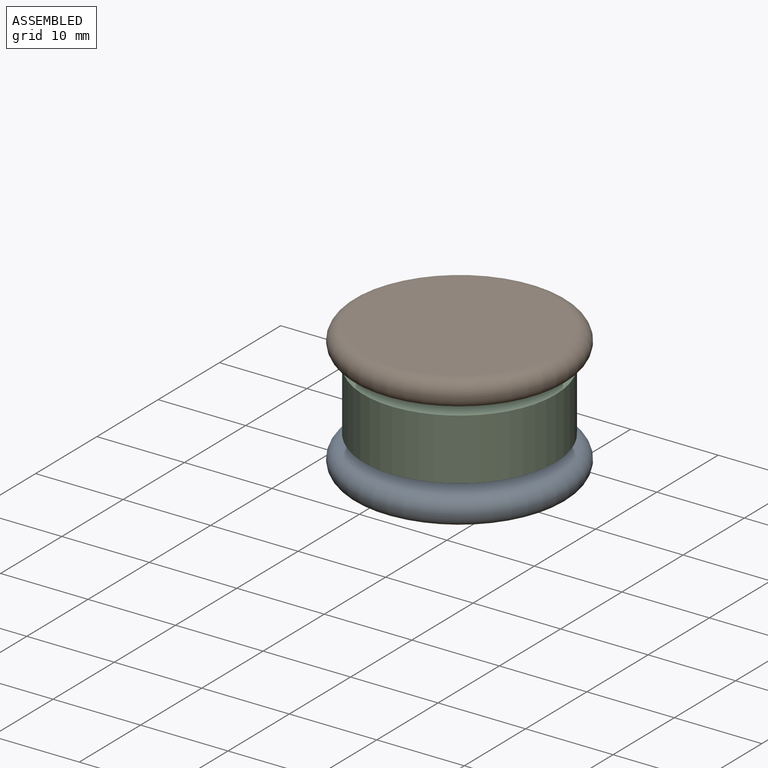
[diagram: assembled view]
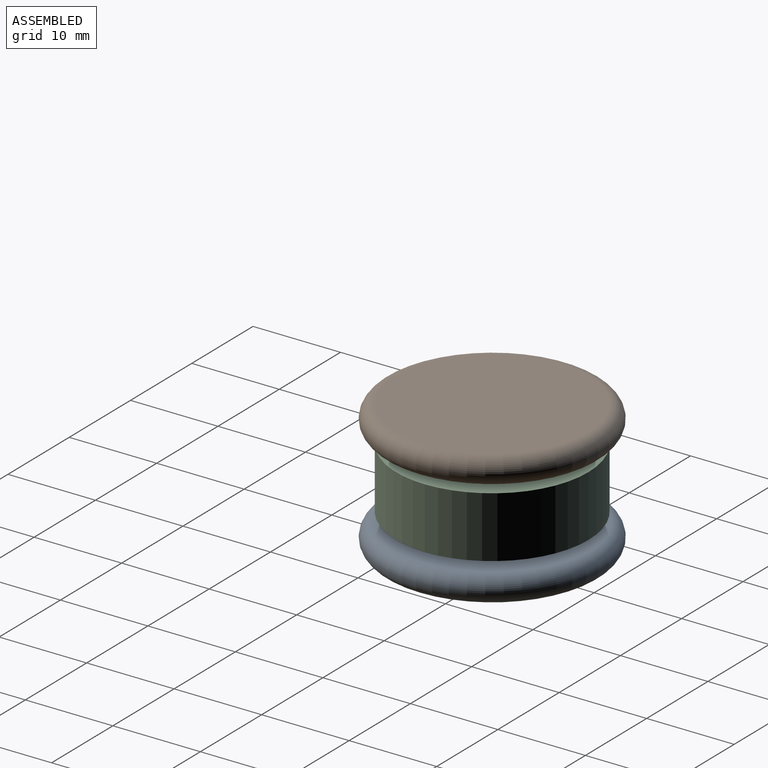
[diagram: assembled view, second angle]
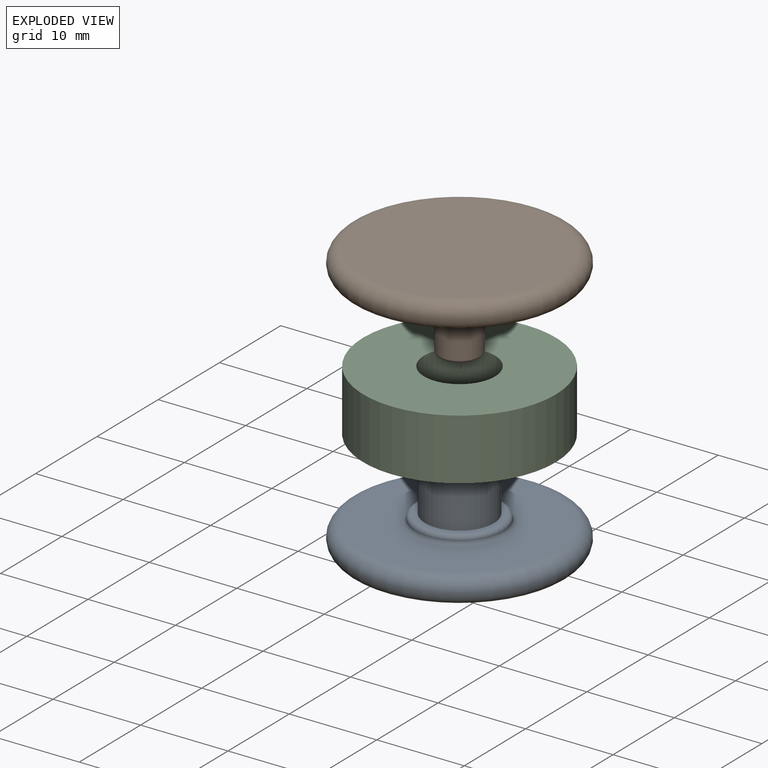
[diagram: exploded view]
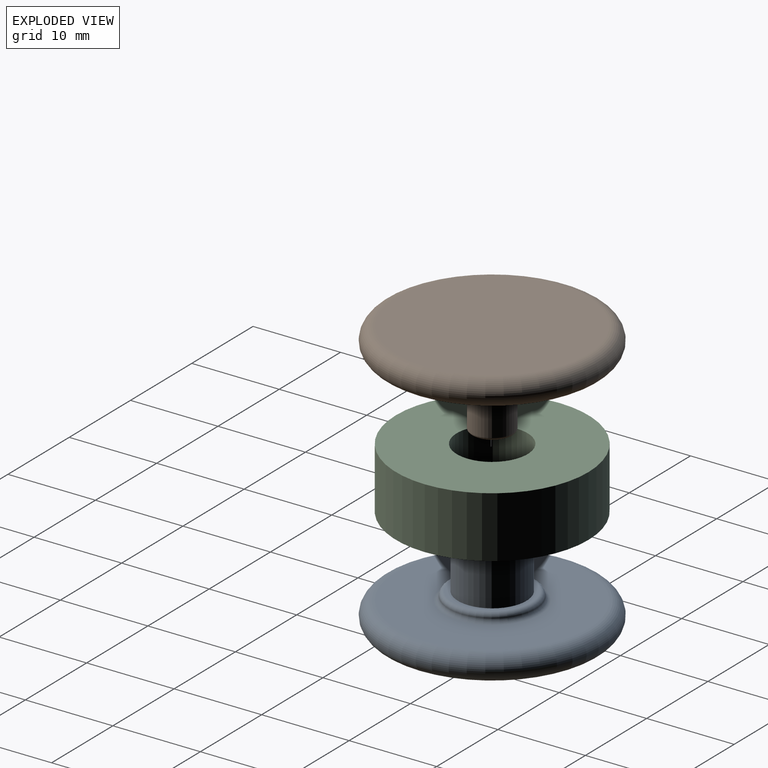
[diagram: exploded view, second angle]
ASSEMBLY  parts=3 mates=2
PART A: 12 faces, bbox 27.1x27.1x11 mm
  f0: plane 22x22mm, normal (0,0,1), area 285.1mm2, adj f7,f9
  f1: plane 22x22mm, normal (0,0,-1), area 380.1mm2, adj f7
  f2: plane 9x9mm, normal (0,0,1), area 15.5mm2, adj f5,f8
  f3: cylinder r=2.5mm len=6.65mm, axis (0,0,-1), area 104.5mm2, adj f6,f10
  f4: plane 7.23x7.23mm, normal (0,0,1), area 16.4mm2, adj f10,f11
  f5: cylinder r=3.92mm len=7.83mm, axis (0,0,-1), area 163.6mm2, adj f2,f11
  f6: plane 5x5mm, normal (0,0,1), area 19.6mm2, adj f3
  f7: torus R=11mm, axis (0,0,1), area 354mm2, adj f0,f1
  f8: torus R=4.5mm, axis (0,0,1), area 23.8mm2, adj f2,f9
  f9: torus R=5.5mm, axis (0,0,1), area 25.6mm2, adj f0,f8
  f10: torus R=2.8mm, axis (0,0,1), area 7.7mm2, adj f3,f4
  f11: torus R=3.62mm, axis (0,0,1), area 11.3mm2, adj f4,f5
PART B: 9 faces, bbox 27.1x27.1x10.8 mm
  f0: plane 22x22mm, normal (0,0,1), area 288mm2, adj f5,f7
  f1: plane 22x22mm, normal (0,0,-1), area 380.1mm2, adj f5
  f2: plane 8x8mm, normal (0,0,1), area 32.5mm2, adj f4,f6
  f3: plane 4.15x4.15mm, normal (0,0,1), area 13.5mm2, adj f8
  f4: cylinder r=2.38mm len=6.5mm, axis (0,0,-1), area 97mm2, adj f2,f8
  f5: torus R=11mm, axis (0,0,1), area 354mm2, adj f0,f1
  f6: torus R=4mm, axis (0,0,1), area 35.1mm2, adj f2,f7
  f7: torus R=5.41mm, axis (0,0,1), area 19.9mm2, adj f0,f6
  f8: torus R=2.08mm, axis (0,0,1), area 6.7mm2, adj f3,f4
PART C: 4 faces, bbox 22x22x7 mm
  f0: cylinder r=4.05mm len=8.1mm, axis (0,0,-1), area 178.1mm2, adj f2,f3
  f1: cylinder r=11mm len=22mm, axis (0,0,-1), area 483.8mm2, adj f2,f3
  f2: plane 22x22mm, normal (0,0,1), area 328.6mm2, adj f0,f1
  f3: plane 22x22mm, normal (0,0,-1), area 328.6mm2, adj f0,f1
PLACE A t=(-6.84,-2.44,-5.34)mm
PLACE B rot(axis=(1,0,0),180deg) t=(-6.84,-2.44,9.89)mm
PLACE C t=(-6.84,-2.44,-1.23)mm fixed
MATE slider A.f7 <-> C.f1  axis (0,0,1) through (-6.84,-2.44,-3.84)mm
MATE slider C.f1 <-> B.f5  axis (0,0,-1) through (-6.84,-2.44,2.27)mm
